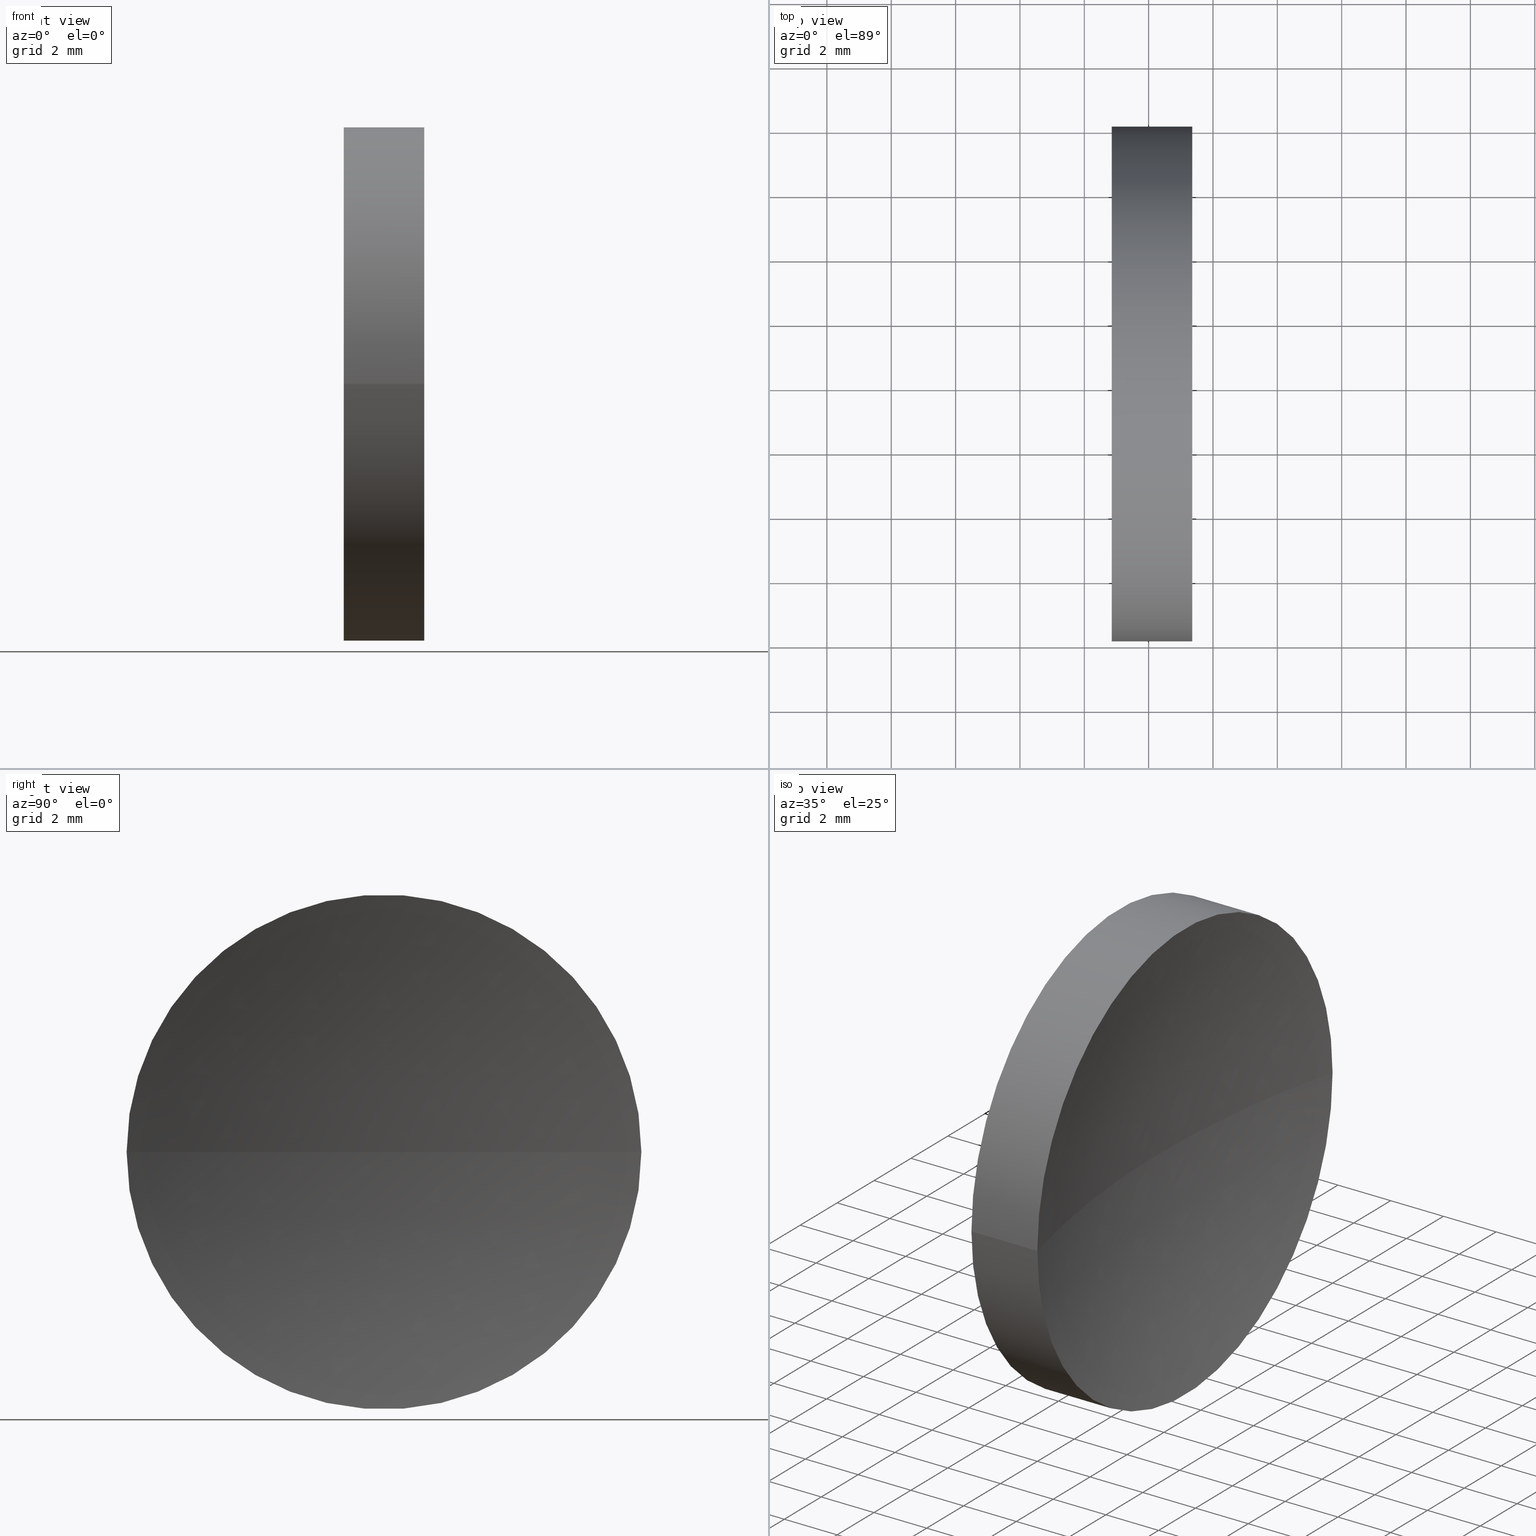
[diagram: canonical four-view strip — front | top / right | iso, engineering-drawing reading convention]
A machine part, canonical four-view strip (front | top / right | iso — engineering-drawing reading convention). The complete STEP part file that produces these views, byte-faithful:
ISO-10303-21;
HEADER;
FILE_DESCRIPTION (( 'STEP AP214' ),
    '1' );
FILE_NAME ('120144.STEP',
    '2019-06-20T01:27:49',
    ( '' ),
    ( '' ),
    'SwSTEP 2.0',
    'SolidWorks 2016',
    '' );
FILE_SCHEMA (( 'AUTOMOTIVE_DESIGN' ));
ENDSEC;

DATA;
#1 = ORIENTED_EDGE ( 'NONE', *, *, #114, .T. ) ;
#2 = STYLED_ITEM ( 'NONE', ( #118 ), #110 ) ;
#3 = ORIENTED_EDGE ( 'NONE', *, *, #162, .T. ) ;
#4 = UNCERTAINTY_MEASURE_WITH_UNIT (LENGTH_MEASURE( 1.000000000000000100E-005 ), #75, 'distance_accuracy_value', 'NONE');
#5 = AXIS2_PLACEMENT_3D ( 'NONE', #8, #97, #76 ) ;
#6 = ORIENTED_EDGE ( 'NONE', *, *, #164, .F. ) ;
#7 = CIRCLE ( 'NONE', #68, 32.50000000000000000 ) ;
#8 = CARTESIAN_POINT ( 'NONE',  ( 43.01195023616492100, 26.06225218280608400, 0.0000000000000000000 ) ) ;
#9 = DIRECTION ( 'NONE',  ( 0.0000000000000000000, 1.000000000000000000, 1.224646799147353500E-016 ) ) ;
#10 = CARTESIAN_POINT ( 'NONE',  ( 78.85442262608158600, 26.06225218280607000, 0.0000000000000000000 ) ) ;
#11 = CARTESIAN_POINT ( 'NONE',  ( 44.85442262622448300, 26.06225218280608400, 0.0000000000000000000 ) ) ;
#12 = FACE_OUTER_BOUND ( 'NONE', #145, .T. ) ;
#13 = APPLICATION_PROTOCOL_DEFINITION ( 'draft international standard', 'automotive_design', 1998, #51 ) ;
#14 =( LENGTH_UNIT ( ) NAMED_UNIT ( * ) SI_UNIT ( .MILLI., .METRE. ) );
#15 = FILL_AREA_STYLE ('',( #101 ) ) ;
#16 = MECHANICAL_DESIGN_GEOMETRIC_PRESENTATION_REPRESENTATION (  '', ( #121 ), #31 ) ;
#17 = SURFACE_SIDE_STYLE ('',( #144 ) ) ;
#18 = DIRECTION ( 'NONE',  ( 4.270088556250601200E-016, 1.000000000000000000, 0.0000000000000000000 ) ) ;
#19 = CARTESIAN_POINT ( 'NONE',  ( 78.85442262608158600, 26.06225218280607000, 0.0000000000000000000 ) ) ;
#20 = DIRECTION ( 'NONE',  ( 0.0000000000000000000, 0.0000000000000000000, -1.000000000000000000 ) ) ;
#21 = VERTEX_POINT ( 'NONE', #96 ) ;
#22 = AXIS2_PLACEMENT_3D ( 'NONE', #151, #127, #42 ) ;
#23 =( LENGTH_UNIT ( ) NAMED_UNIT ( * ) SI_UNIT ( .MILLI., .METRE. ) );
#24 = SURFACE_SIDE_STYLE ('',( #49 ) ) ;
#25 = VERTEX_POINT ( 'NONE', #29 ) ;
#26 = PRODUCT ( '120144', '120144', '', ( #157 ) ) ;
#27 = CIRCLE ( 'NONE', #77, 32.50000000000000700 ) ;
#28 = PRESENTATION_LAYER_ASSIGNMENT (  '', '', ( #2 ) ) ;
#29 = CARTESIAN_POINT ( 'NONE',  ( 44.85442262622448300, 34.06225218280608400, 9.797174393178827600E-016 ) ) ;
#30 = SHAPE_DEFINITION_REPRESENTATION ( #67, #88 ) ;
#31 =( GEOMETRIC_REPRESENTATION_CONTEXT ( 3 ) GLOBAL_UNCERTAINTY_ASSIGNED_CONTEXT ( ( #109 ) ) GLOBAL_UNIT_ASSIGNED_CONTEXT ( ( #14, #141, #79 ) ) REPRESENTATION_CONTEXT ( 'NONE', 'WORKASPACE' ) );
#32 = DIRECTION ( 'NONE',  ( -1.000000000000000000, 4.058245434298766700E-016, -0.0000000000000000000 ) ) ;
#33 =( NAMED_UNIT ( * ) PLANE_ANGLE_UNIT ( ) SI_UNIT ( $, .RADIAN. ) );
#34 = LINE ( 'NONE', #74, #41 ) ;
#35 = ORIENTED_EDGE ( 'NONE', *, *, #40, .T. ) ;
#36 = CARTESIAN_POINT ( 'NONE',  ( 44.85442262622448300, 26.06225218280608400, 0.0000000000000000000 ) ) ;
#37 = CARTESIAN_POINT ( 'NONE',  ( 0.0000000000000000000, 0.0000000000000000000, 0.0000000000000000000 ) ) ;
#38 = ORIENTED_EDGE ( 'NONE', *, *, #146, .T. ) ;
#39 =( GEOMETRIC_REPRESENTATION_CONTEXT ( 3 ) GLOBAL_UNCERTAINTY_ASSIGNED_CONTEXT ( ( #4 ) ) GLOBAL_UNIT_ASSIGNED_CONTEXT ( ( #75, #33, #115 ) ) REPRESENTATION_CONTEXT ( 'NONE', 'WORKASPACE' ) );
#40 = EDGE_CURVE ( 'NONE', #132, #87, #134, .T. ) ;
#41 = VECTOR ( 'NONE', #86, 1000.000000000000000 ) ;
#42 = DIRECTION ( 'NONE',  ( 0.0000000000000000000, -1.000000000000000000, 0.0000000000000000000 ) ) ;
#43 = FACE_OUTER_BOUND ( 'NONE', #135, .T. ) ;
#44 = FILL_AREA_STYLE_COLOUR ( '', #148 ) ;
#45 = UNCERTAINTY_MEASURE_WITH_UNIT (LENGTH_MEASURE( 1.000000000000000100E-005 ), #23, 'distance_accuracy_value', 'NONE');
#46 = DIRECTION ( 'NONE',  ( 0.0000000000000000000, 0.0000000000000000000, 1.000000000000000000 ) ) ;
#47 = VERTEX_POINT ( 'NONE', #59 ) ;
#48 = EDGE_CURVE ( 'NONE', #25, #21, #166, .T. ) ;
#49 = SURFACE_STYLE_FILL_AREA ( #15 ) ;
#50 = FACE_OUTER_BOUND ( 'NONE', #70, .T. ) ;
#51 = APPLICATION_CONTEXT ( 'automotive_design' ) ;
#52 = ORIENTED_EDGE ( 'NONE', *, *, #114, .F. ) ;
#53 = AXIS2_PLACEMENT_3D ( 'NONE', #11, #90, #105 ) ;
#54 = CARTESIAN_POINT ( 'NONE',  ( 47.35442262608158600, 26.06225218280608000, 0.0000000000000000000 ) ) ;
#55 = AXIS2_PLACEMENT_3D ( 'NONE', #36, #112, #85 ) ;
#56 = DIRECTION ( 'NONE',  ( 4.058245434298766700E-016, 1.000000000000000000, 0.0000000000000000000 ) ) ;
#57 = VECTOR ( 'NONE', #32, 1000.000000000000000 ) ;
#58 = ORIENTED_EDGE ( 'NONE', *, *, #154, .T. ) ;
#59 = CARTESIAN_POINT ( 'NONE',  ( 46.35442262608157200, 26.06225218280608400, 0.0000000000000000000 ) ) ;
#60 = ADVANCED_FACE ( 'NONE', ( #128 ), #149, .F. ) ;
#61 = DIRECTION ( 'NONE',  ( 1.000000000000000000, 0.0000000000000000000, 0.0000000000000000000 ) ) ;
#62 = PRODUCT_DEFINITION ( 'δ֪', '', #89, #120 ) ;
#63 = MECHANICAL_DESIGN_GEOMETRIC_PRESENTATION_REPRESENTATION (  '', ( #2 ), #39 ) ;
#64 = APPLICATION_CONTEXT ( 'automotive_design' ) ;
#65 = ORIENTED_EDGE ( 'NONE', *, *, #147, .F. ) ;
#66 = DIRECTION ( 'NONE',  ( 0.0000000000000000000, 0.0000000000000000000, 1.000000000000000000 ) ) ;
#67 = PRODUCT_DEFINITION_SHAPE ( 'NONE', 'NONE',  #62 ) ;
#68 = AXIS2_PLACEMENT_3D ( 'NONE', #10, #46, #61 ) ;
#69 = LINE ( 'NONE', #82, #57 ) ;
#70 = EDGE_LOOP ( 'NONE', ( #159, #1, #84, #65 ) ) ;
#71 = ADVANCED_FACE ( 'NONE', ( #50 ), #131, .T. ) ;
#72 = ADVANCED_FACE ( 'NONE', ( #83 ), #99, .T. ) ;
#73 = PRESENTATION_STYLE_ASSIGNMENT (( #91 ) ) ;
#74 = CARTESIAN_POINT ( 'NONE',  ( 43.01195023616492100, 18.06225218280608400, 0.0000000000000000000 ) ) ;
#75 =( LENGTH_UNIT ( ) NAMED_UNIT ( * ) SI_UNIT ( .MILLI., .METRE. ) );
#76 = DIRECTION ( 'NONE',  ( 0.0000000000000000000, -1.000000000000000000, 0.0000000000000000000 ) ) ;
#77 = AXIS2_PLACEMENT_3D ( 'NONE', #103, #116, #9 ) ;
#78 = AXIS2_PLACEMENT_3D ( 'NONE', #100, #20, #18 ) ;
#79 =( NAMED_UNIT ( * ) SI_UNIT ( $, .STERADIAN. ) SOLID_ANGLE_UNIT ( ) );
#80 = CIRCLE ( 'NONE', #53, 8.000000000000000000 ) ;
#81 = ADVANCED_FACE ( 'NONE', ( #12 ), #104, .F. ) ;
#82 = CARTESIAN_POINT ( 'NONE',  ( 43.01195023616492100, 34.06225218280608400, 9.797174393178827600E-016 ) ) ;
#83 = FACE_OUTER_BOUND ( 'NONE', #142, .T. ) ;
#84 = ORIENTED_EDGE ( 'NONE', *, *, #146, .F. ) ;
#85 = DIRECTION ( 'NONE',  ( 0.0000000000000000000, -1.000000000000000000, 0.0000000000000000000 ) ) ;
#86 = DIRECTION ( 'NONE',  ( -1.000000000000000000, 4.058245434298766700E-016, -0.0000000000000000000 ) ) ;
#87 = VERTEX_POINT ( 'NONE', #124 ) ;
#88 = ADVANCED_BREP_SHAPE_REPRESENTATION ( '120144', ( #110, #107 ), #102 ) ;
#89 = PRODUCT_DEFINITION_FORMATION_WITH_SPECIFIED_SOURCE ( '�κ�', '', #26, .NOT_KNOWN. ) ;
#90 = DIRECTION ( 'NONE',  ( -1.000000000000000000, 4.058245434298766700E-016, -0.0000000000000000000 ) ) ;
#91 = SURFACE_STYLE_USAGE ( .BOTH. , #24 ) ;
#92 = DIRECTION ( 'NONE',  ( 1.000000000000000000, 0.0000000000000000000, 0.0000000000000000000 ) ) ;
#93 = AXIS2_PLACEMENT_3D ( 'NONE', #119, #153, #130 ) ;
#94 = AXIS2_PLACEMENT_3D ( 'NONE', #19, #152, #163 ) ;
#95 = CIRCLE ( 'NONE', #93, 8.000000000000003600 ) ;
#96 = CARTESIAN_POINT ( 'NONE',  ( 44.85442262622448300, 18.06225218280608400, 0.0000000000000000000 ) ) ;
#97 = DIRECTION ( 'NONE',  ( -1.000000000000000000, 4.058245434298766700E-016, -0.0000000000000000000 ) ) ;
#98 = FILL_AREA_STYLE ('',( #44 ) ) ;
#99 = CYLINDRICAL_SURFACE ( 'NONE', #22, 8.000000000000000000 ) ;
#100 = CARTESIAN_POINT ( 'NONE',  ( 78.85442262608158600, 26.06225218280607000, 0.0000000000000000000 ) ) ;
#101 = FILL_AREA_STYLE_COLOUR ( '', #158 ) ;
#102 =( GEOMETRIC_REPRESENTATION_CONTEXT ( 3 ) GLOBAL_UNCERTAINTY_ASSIGNED_CONTEXT ( ( #45 ) ) GLOBAL_UNIT_ASSIGNED_CONTEXT ( ( #23, #165, #117 ) ) REPRESENTATION_CONTEXT ( 'NONE', 'WORKASPACE' ) );
#103 = CARTESIAN_POINT ( 'NONE',  ( 78.85442262608158600, 26.06225218280607000, 0.0000000000000000000 ) ) ;
#104 = SPHERICAL_SURFACE ( 'NONE', #94, 32.50000000000000700 ) ;
#105 = DIRECTION ( 'NONE',  ( 0.0000000000000000000, -1.000000000000000000, 0.0000000000000000000 ) ) ;
#106 = ORIENTED_EDGE ( 'NONE', *, *, #154, .F. ) ;
#107 = AXIS2_PLACEMENT_3D ( 'NONE', #37, #66, #92 ) ;
#108 = ORIENTED_EDGE ( 'NONE', *, *, #40, .F. ) ;
#109 = UNCERTAINTY_MEASURE_WITH_UNIT (LENGTH_MEASURE( 1.000000000000000100E-005 ), #14, 'distance_accuracy_value', 'NONE');
#110 = MANIFOLD_SOLID_BREP ( '��ת1', #139 ) ;
#111 = EDGE_LOOP ( 'NONE', ( #6, #3, #106 ) ) ;
#112 = DIRECTION ( 'NONE',  ( -1.000000000000000000, 4.058245434298766700E-016, -0.0000000000000000000 ) ) ;
#113 = SURFACE_STYLE_USAGE ( .BOTH. , #17 ) ;
#114 = EDGE_CURVE ( 'NONE', #132, #25, #69, .T. ) ;
#115 =( NAMED_UNIT ( * ) SI_UNIT ( $, .STERADIAN. ) SOLID_ANGLE_UNIT ( ) );
#116 = DIRECTION ( 'NONE',  ( 4.969917281268344600E-032, 1.224646799147353200E-016, -1.000000000000000000 ) ) ;
#117 =( NAMED_UNIT ( * ) SI_UNIT ( $, .STERADIAN. ) SOLID_ANGLE_UNIT ( ) );
#118 = PRESENTATION_STYLE_ASSIGNMENT (( #113 ) ) ;
#119 = CARTESIAN_POINT ( 'NONE',  ( 47.35442262608158600, 26.06225218280608000, 0.0000000000000000000 ) ) ;
#120 = PRODUCT_DEFINITION_CONTEXT ( 'detailed design', #64, 'design' ) ;
#121 = STYLED_ITEM ( 'NONE', ( #73 ), #88 ) ;
#122 = AXIS2_PLACEMENT_3D ( 'NONE', #160, #137, #56 ) ;
#123 = ORIENTED_EDGE ( 'NONE', *, *, #48, .T. ) ;
#124 = CARTESIAN_POINT ( 'NONE',  ( 47.35442262608158600, 18.06225218280606600, -9.797174393178843400E-016 ) ) ;
#125 = ADVANCED_FACE ( 'NONE', ( #43 ), #161, .F. ) ;
#126 = DIRECTION ( 'NONE',  ( -1.000000000000000000, 4.058245434298766700E-016, -0.0000000000000000000 ) ) ;
#127 = DIRECTION ( 'NONE',  ( -1.000000000000000000, 4.058245434298766700E-016, -0.0000000000000000000 ) ) ;
#128 = FACE_OUTER_BOUND ( 'NONE', #111, .T. ) ;
#129 = PRESENTATION_LAYER_ASSIGNMENT (  '', '', ( #121 ) ) ;
#130 = DIRECTION ( 'NONE',  ( 0.0000000000000000000, -1.000000000000000000, 0.0000000000000000000 ) ) ;
#131 = CYLINDRICAL_SURFACE ( 'NONE', #5, 8.000000000000000000 ) ;
#132 = VERTEX_POINT ( 'NONE', #150 ) ;
#133 = AXIS2_PLACEMENT_3D ( 'NONE', #54, #126, #136 ) ;
#134 = CIRCLE ( 'NONE', #133, 8.000000000000003600 ) ;
#135 = EDGE_LOOP ( 'NONE', ( #38, #123 ) ) ;
#136 = DIRECTION ( 'NONE',  ( 0.0000000000000000000, -1.000000000000000000, 0.0000000000000000000 ) ) ;
#137 = DIRECTION ( 'NONE',  ( 1.000000000000000000, -4.058245434298766700E-016, 0.0000000000000000000 ) ) ;
#138 = ORIENTED_EDGE ( 'NONE', *, *, #162, .F. ) ;
#139 = CLOSED_SHELL ( 'NONE', ( #71, #60, #81, #72, #125 ) ) ;
#140 = ORIENTED_EDGE ( 'NONE', *, *, #147, .T. ) ;
#141 =( NAMED_UNIT ( * ) PLANE_ANGLE_UNIT ( ) SI_UNIT ( $, .RADIAN. ) );
#142 = EDGE_LOOP ( 'NONE', ( #52, #35, #140, #156 ) ) ;
#143 = PRODUCT_RELATED_PRODUCT_CATEGORY ( 'part', '', ( #26 ) ) ;
#144 = SURFACE_STYLE_FILL_AREA ( #98 ) ;
#145 = EDGE_LOOP ( 'NONE', ( #138, #108, #58 ) ) ;
#146 = EDGE_CURVE ( 'NONE', #21, #25, #80, .T. ) ;
#147 = EDGE_CURVE ( 'NONE', #87, #21, #34, .T. ) ;
#148 = COLOUR_RGB ( '',1.000000000000000000, 1.000000000000000000, 1.000000000000000000 ) ;
#149 = SPHERICAL_SURFACE ( 'NONE', #78, 32.50000000000000700 ) ;
#150 = CARTESIAN_POINT ( 'NONE',  ( 47.35442262608158600, 34.06225218280609800, 0.0000000000000000000 ) ) ;
#151 = CARTESIAN_POINT ( 'NONE',  ( 43.01195023616492100, 26.06225218280608400, 0.0000000000000000000 ) ) ;
#152 = DIRECTION ( 'NONE',  ( 0.0000000000000000000, 0.0000000000000000000, -1.000000000000000000 ) ) ;
#153 = DIRECTION ( 'NONE',  ( -1.000000000000000000, 4.058245434298766700E-016, -0.0000000000000000000 ) ) ;
#154 = EDGE_CURVE ( 'NONE', #132, #47, #7, .T. ) ;
#155 = APPLICATION_PROTOCOL_DEFINITION ( 'draft international standard', 'automotive_design', 1998, #64 ) ;
#156 = ORIENTED_EDGE ( 'NONE', *, *, #48, .F. ) ;
#157 = PRODUCT_CONTEXT ( 'NONE', #51, 'mechanical' ) ;
#158 = COLOUR_RGB ( '',1.000000000000000000, 1.000000000000000000, 1.000000000000000000 ) ;
#159 = ORIENTED_EDGE ( 'NONE', *, *, #164, .T. ) ;
#160 = CARTESIAN_POINT ( 'NONE',  ( 44.85442262622448300, 26.06225218280608400, 0.0000000000000000000 ) ) ;
#161 = PLANE ( 'NONE',  #122 ) ;
#162 = EDGE_CURVE ( 'NONE', #87, #47, #27, .T. ) ;
#163 = DIRECTION ( 'NONE',  ( 4.270088556250601200E-016, 1.000000000000000000, 0.0000000000000000000 ) ) ;
#164 = EDGE_CURVE ( 'NONE', #87, #132, #95, .T. ) ;
#165 =( NAMED_UNIT ( * ) PLANE_ANGLE_UNIT ( ) SI_UNIT ( $, .RADIAN. ) );
#166 = CIRCLE ( 'NONE', #55, 8.000000000000000000 ) ;
ENDSEC;
END-ISO-10303-21;
